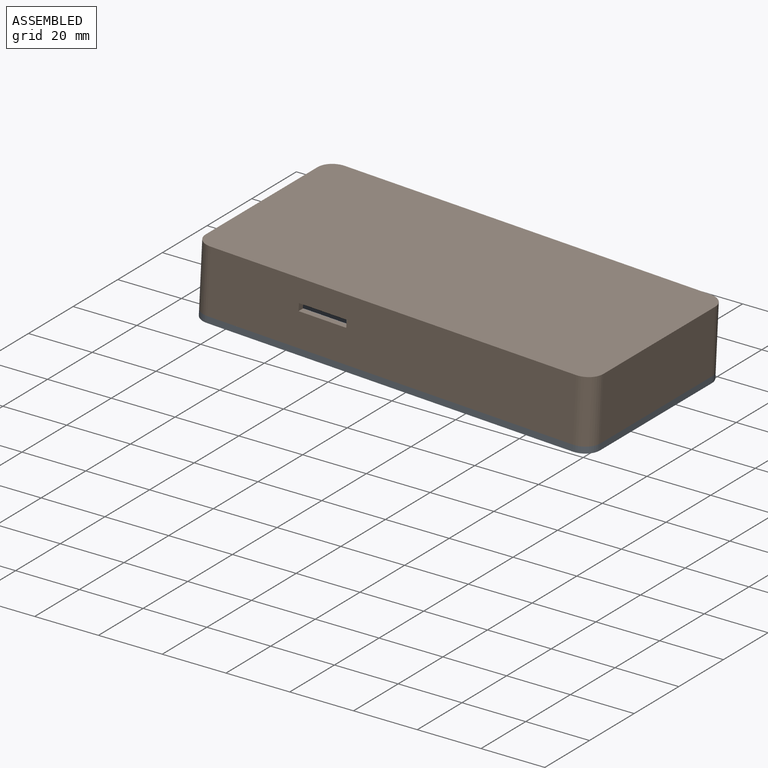
[diagram: assembled view]
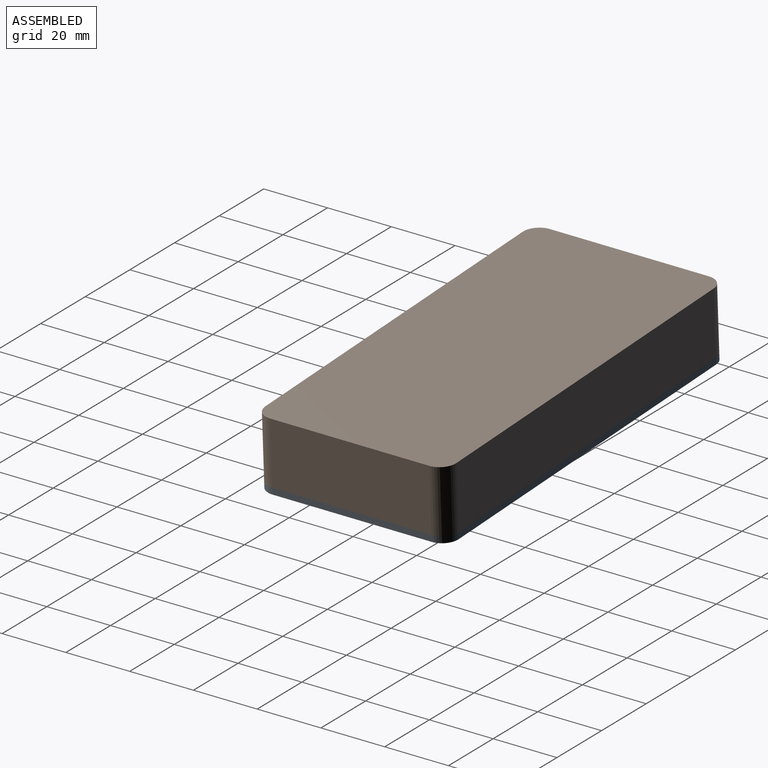
[diagram: assembled view, second angle]
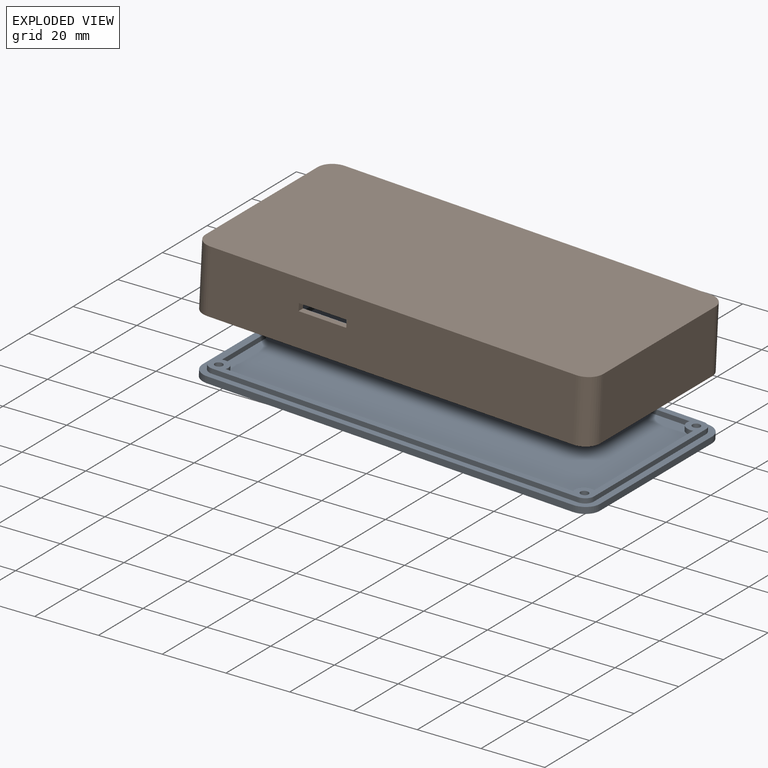
[diagram: exploded view]
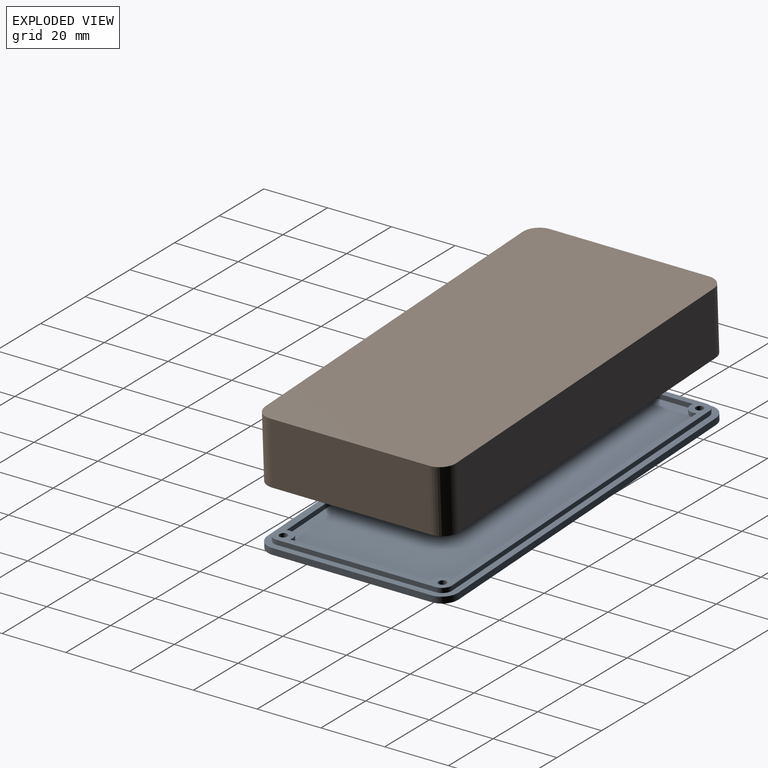
[diagram: exploded view, second angle]
ASSEMBLY  parts=2 mates=3
PART A: 43 faces, bbox 125x60x3.5 mm
  f0: plane 19.77x1.5mm, normal (-1,0,0), area 29.7mm2, adj f10,f28,f32,f41
  f1: plane 22.6x1.5mm, normal (1,0,0), area 33.9mm2, adj f10,f23,f28,f41
  f2: cylinder r=1.25mm len=2.5mm, axis (0,0,-1), area 13.4mm2, adj f28,f40
  f3: cylinder r=1.25mm len=2.5mm, axis (0,0,-1), area 13.4mm2, adj f28,f38
  f4: cylinder r=1.25mm len=2.5mm, axis (0,0,-1), area 13.4mm2, adj f28,f36
  f5: cylinder r=1.25mm len=2.5mm, axis (0,0,-1), area 13.4mm2, adj f28,f34
  f6: plane 19.77x1.5mm, normal (-1,0,0), area 29.7mm2, adj f10,f28,f31,f42
  f7: plane 109.34x1.5mm, normal (0,-1,0), area 164mm2, adj f10,f28,f29,f32
  f8: plane 109.34x1.5mm, normal (0,1,0), area 164mm2, adj f10,f28,f30,f31
  f9: plane 44.34x1.5mm, normal (1,0,0), area 66.5mm2, adj f10,f28,f29,f30
  f10: plane 125x60mm, normal (0,0,1), area 6748mm2, adj f0,f1,f6,f7,f8,f9,f11,f12
  f11: plane 50x2mm, normal (1,0,0), area 100mm2, adj f10,f15,f16,f19
  f12: plane 115x2mm, normal (0,1,0), area 230mm2, adj f10,f15,f16,f17
  f13: plane 50x2mm, normal (-1,0,0), area 100mm2, adj f10,f15,f17,f18
  f14: plane 115x2mm, normal (0,-1,0), area 230mm2, adj f10,f15,f18,f19
  f15: plane 125x60mm, normal (0,0,-1), area 7380mm2, adj f11,f12,f13,f14,f16,f17,f18,f19
  f16: cylinder r=5mm len=5mm, axis (0,0,-1), area 15.7mm2, adj f10,f11,f12,f15
  f17: cylinder r=5mm len=5mm, axis (0,0,1), area 15.7mm2, adj f10,f12,f13,f15
  f18: cylinder r=5mm len=5mm, axis (0,0,-1), area 15.7mm2, adj f10,f13,f14,f15
  f19: cylinder r=5mm len=5mm, axis (0,0,1), area 15.7mm2, adj f10,f11,f14,f15
  f20: plane 115x1.5mm, normal (0,-1,0), area 172.5mm2, adj f10,f21,f27,f28
  f21: cylinder r=3mm len=3mm, axis (0,0,-1), area 7.1mm2, adj f10,f20,f22,f28
  f22: plane 22.6x1.5mm, normal (1,0,0), area 33.9mm2, adj f10,f21,f28,f42
  f23: cylinder r=3mm len=3mm, axis (0,0,-1), area 7.1mm2, adj f1,f10,f24,f28
  f24: plane 115x1.5mm, normal (0,1,0), area 172.5mm2, adj f10,f23,f25,f28
  f25: cylinder r=3mm len=3mm, axis (0,0,-1), area 7.1mm2, adj f10,f24,f26,f28
  f26: plane 50x1.5mm, normal (-1,0,0), area 75mm2, adj f10,f25,f27,f28
  f27: cylinder r=3mm len=3mm, axis (0,0,-1), area 7.1mm2, adj f10,f20,f26,f28
  f28: plane 121x56mm, normal (0,0,1), area 710.9mm2, adj f0,f1,f2,f3,f4,f5,f6,f7
  f29: cylinder r=3mm len=4mm, axis (0,0,-1), area 10.1mm2, adj f7,f9,f10,f28
  f30: cylinder r=3mm len=4mm, axis (0,0,-1), area 10.1mm2, adj f8,f9,f10,f28
  f31: cylinder r=3mm len=4mm, axis (0,0,-1), area 10.1mm2, adj f6,f8,f10,f28
  f32: cylinder r=3mm len=4mm, axis (0,0,-1), area 10.1mm2, adj f0,f7,f10,f28
  f33: cylinder r=2.8mm len=5.6mm, axis (0,0,-1), area 31.7mm2, adj f15,f34
  f34: plane 5.6x5.6mm, normal (0,0,-1), area 19.7mm2, adj f5,f33
  f35: cylinder r=2.8mm len=5.6mm, axis (0,0,-1), area 31.7mm2, adj f15,f36
  f36: plane 5.6x5.6mm, normal (0,0,-1), area 19.7mm2, adj f4,f35
  f37: cylinder r=2.8mm len=5.6mm, axis (0,0,-1), area 31.7mm2, adj f15,f38
  f38: plane 5.6x5.6mm, normal (0,0,-1), area 19.7mm2, adj f3,f37
  f39: cylinder r=2.8mm len=5.6mm, axis (0,0,-1), area 31.7mm2, adj f15,f40
  f40: plane 5.6x5.6mm, normal (0,0,-1), area 19.7mm2, adj f2,f39
  f41: plane 2x1.5mm, normal (0,-1,0), area 3mm2, adj f0,f1,f10,f28
  f42: plane 2x1.5mm, normal (0,1,0), area 3mm2, adj f6,f10,f22,f28
PART B: 75 faces, bbox 125x66.1x20 mm
  f0: plane 115x18mm, normal (0,1,0), area 1927.3mm2, adj f2,f7,f36,f37,f46,f47,f49,f51
  f1: plane 50x18mm, normal (1,0,0), area 801mm2, adj f2,f7,f36,f38,f40,f41,f46,f48
  f2: plane 121x56mm, normal (0,0,1), area 2651.2mm2, adj f0,f1,f9,f10,f27,f28,f29,f30
  f3: plane 50x20mm, normal (1,0,0), area 988mm2, adj f7,f8,f32,f35,f68,f69,f70
  f4: plane 115x20mm, normal (0,1,0), area 2300mm2, adj f7,f8,f32,f33
  f5: plane 50x20mm, normal (-1,0,0), area 1000mm2, adj f7,f8,f33,f34
  f6: plane 115x20mm, normal (0,-1,0), area 2265.5mm2, adj f7,f8,f34,f35,f64,f65,f66,f67
  f7: plane 125x60mm, normal (0,0,1), area 700.7mm2, adj f0,f1,f3,f4,f5,f6,f9,f10
  f8: plane 125x60mm, normal (0,0,-1), area 7478.5mm2, adj f3,f4,f5,f6,f32,f33,f34,f35
  f9: plane 50x18mm, normal (-1,0,0), area 789mm2, adj f2,f7,f37,f39,f43,f45,f49,f50
  f10: plane 115x18mm, normal (0,-1,0), area 1961.8mm2, adj f2,f7,f38,f39,f40,f42,f43,f44
  f11: cylinder r=1.25mm len=3.8mm, axis (0,0,-1), area 29.8mm2, adj f13,f14
  f12: cylinder r=3mm len=6mm, axis (0,0,-1), area 15.1mm2, adj f13,f74
  f13: plane 6x6mm, normal (0,0,1), area 23.4mm2, adj f11,f12
  f14: plane 2.5x2.5mm, normal (0,0,1), area 4.9mm2, adj f11
  f15: cylinder r=1.25mm len=3.8mm, axis (0,0,-1), area 29.8mm2, adj f17,f18
  f16: cylinder r=3mm len=6mm, axis (0,0,-1), area 15.1mm2, adj f17,f73
  f17: plane 6x6mm, normal (0,0,1), area 23.4mm2, adj f15,f16
  f18: plane 2.5x2.5mm, normal (0,0,1), area 4.9mm2, adj f15
  f19: cylinder r=1.25mm len=3.8mm, axis (0,0,-1), area 29.8mm2, adj f21,f22
  f20: cylinder r=3mm len=6mm, axis (0,0,-1), area 15.1mm2, adj f21,f72
  f21: plane 6x6mm, normal (0,0,1), area 23.4mm2, adj f19,f20
  f22: plane 2.5x2.5mm, normal (0,0,1), area 4.9mm2, adj f19
  f23: cylinder r=1.25mm len=3.8mm, axis (0,0,-1), area 29.8mm2, adj f25,f26
  f24: cylinder r=3mm len=6mm, axis (0,0,-1), area 15.1mm2, adj f25,f71
  f25: plane 6x6mm, normal (0,0,1), area 23.4mm2, adj f23,f24
  f26: plane 2.5x2.5mm, normal (0,0,1), area 4.9mm2, adj f23
  f27: plane 48.96x3.8mm, normal (1,0,0), area 186mm2, adj f2,f28,f30,f31
  f28: plane 73.44x3.8mm, normal (0,1,0), area 279.1mm2, adj f2,f27,f29,f31
  f29: plane 48.96x3.8mm, normal (-1,0,0), area 186mm2, adj f2,f28,f30,f31
  f30: plane 73.44x3.8mm, normal (0,-1,0), area 279.1mm2, adj f2,f27,f29,f31
  f31: plane 73.44x48.96mm, normal (0,0,1), area 3595.6mm2, adj f27,f28,f29,f30
  f32: cylinder r=5mm len=20mm, axis (0,0,-1), area 157.1mm2, adj f3,f4,f7,f8
  f33: cylinder r=5mm len=20mm, axis (0,0,1), area 157.1mm2, adj f4,f5,f7,f8
  f34: cylinder r=5mm len=20mm, axis (0,0,-1), area 157.1mm2, adj f5,f6,f7,f8
  f35: cylinder r=5mm len=20mm, axis (0,0,1), area 157.1mm2, adj f3,f6,f7,f8
  f36: cylinder r=3mm len=3mm, axis (0,0,1), area 7.1mm2, adj f0,f1,f7,f46
  f37: cylinder r=3mm len=3mm, axis (0,0,-1), area 7.1mm2, adj f0,f7,f9,f49
  f38: cylinder r=3mm len=3mm, axis (0,0,-1), area 7.1mm2, adj f1,f7,f10,f40
  f39: cylinder r=3mm len=3mm, axis (0,0,1), area 7.1mm2, adj f7,f9,f10,f43
  f40: plane 6x6mm, normal (0,0,1), area 27.2mm2, adj f1,f10,f38,f41,f42,f58,f63
  f41: plane 16.5x3mm, normal (0,-1,0), area 49.5mm2, adj f1,f2,f40,f63
  f42: plane 16.5x3mm, normal (1,0,0), area 49.5mm2, adj f2,f10,f40,f63
  f43: plane 6x6mm, normal (0,0,1), area 27.2mm2, adj f9,f10,f39,f44,f45,f56,f62
  f44: plane 16.5x3mm, normal (-1,0,0), area 49.5mm2, adj f2,f10,f43,f62
  f45: plane 16.5x3mm, normal (0,-1,0), area 49.5mm2, adj f2,f9,f43,f62
  f46: plane 6x6mm, normal (0,0,1), area 27.2mm2, adj f0,f1,f36,f47,f48,f54,f61
  f47: plane 16.5x3mm, normal (1,0,0), area 49.5mm2, adj f0,f2,f46,f61
  f48: plane 16.5x3mm, normal (0,1,0), area 49.5mm2, adj f1,f2,f46,f61
  f49: plane 6x6mm, normal (0,0,1), area 27.2mm2, adj f0,f9,f37,f50,f51,f52,f60
  f50: plane 16.5x3mm, normal (0,1,0), area 49.5mm2, adj f2,f9,f49,f60
  f51: plane 16.5x3mm, normal (-1,0,0), area 49.5mm2, adj f0,f2,f49,f60
  f52: cylinder r=1.25mm len=8.5mm, axis (0,0,1), area 66.8mm2, adj f49,f53
  f53: plane 2.5x2.5mm, normal (0,0,1), area 4.9mm2, adj f52
  f54: cylinder r=1.25mm len=8.5mm, axis (0,0,1), area 66.8mm2, adj f46,f55
  f55: plane 2.5x2.5mm, normal (0,0,1), area 4.9mm2, adj f54
  f56: cylinder r=1.25mm len=8.5mm, axis (0,0,1), area 66.8mm2, adj f43,f57
  f57: plane 2.5x2.5mm, normal (0,0,1), area 4.9mm2, adj f56
  f58: cylinder r=1.25mm len=8.5mm, axis (0,0,1), area 66.8mm2, adj f40,f59
  f59: plane 2.5x2.5mm, normal (0,0,1), area 4.9mm2, adj f58
  f60: cylinder r=3mm len=16.5mm, axis (0,0,1), area 77.8mm2, adj f2,f49,f50,f51
  f61: cylinder r=3mm len=16.5mm, axis (0,0,1), area 77.8mm2, adj f2,f46,f47,f48
  f62: cylinder r=3mm len=16.5mm, axis (0,0,1), area 77.8mm2, adj f2,f43,f44,f45
  f63: cylinder r=3mm len=16.5mm, axis (0,0,1), area 77.8mm2, adj f2,f40,f41,f42
  f64: plane 15x2mm, normal (0,0,-1), area 30mm2, adj f0,f6,f65,f66
  f65: plane 2.3x2mm, normal (-1,0,0), area 4.6mm2, adj f0,f6,f64,f67
  f66: plane 2.3x2mm, normal (1,0,0), area 4.6mm2, adj f0,f6,f64,f67
  f67: plane 15x2mm, normal (0,0,1), area 30mm2, adj f0,f6,f65,f66
  f68: plane 2.5x2mm, normal (0,1,0), area 5mm2, adj f3,f7,f9,f69
  f69: plane 4.8x2mm, normal (0,0,1), area 9.6mm2, adj f3,f9,f68,f70
  f70: plane 2.5x2mm, normal (0,-1,0), area 5mm2, adj f3,f7,f9,f69
  f71: torus R=6mm, axis (0,0,1), area 105.1mm2, adj f0,f2,f24
  f72: torus R=6mm, axis (0,0,1), area 105.1mm2, adj f0,f2,f20
  f73: torus R=6mm, axis (0,0,1), area 105.1mm2, adj f2,f10,f16
  f74: torus R=6mm, axis (0,0,1), area 105.1mm2, adj f2,f10,f12
PLACE A rot(axis=(0.02,0,1),179.9deg) t=(42.37,17.27,-10.44)mm fixed
PLACE B rot(axis=(0,-1,0),177.2deg) t=(43.45,17.26,11.53)mm
MATE planar B.f4 <-> A.f14  axis (0,1,0) through (43.01,47.26,1.55)mm
MATE planar B.f5 <-> A.f13  axis (1,0,-0.05) through (105.38,17.14,-1.51)mm
MATE planar B.f7 <-> A.f10  axis (-0.05,0,-1) through (43.31,17.26,-8.48)mm
